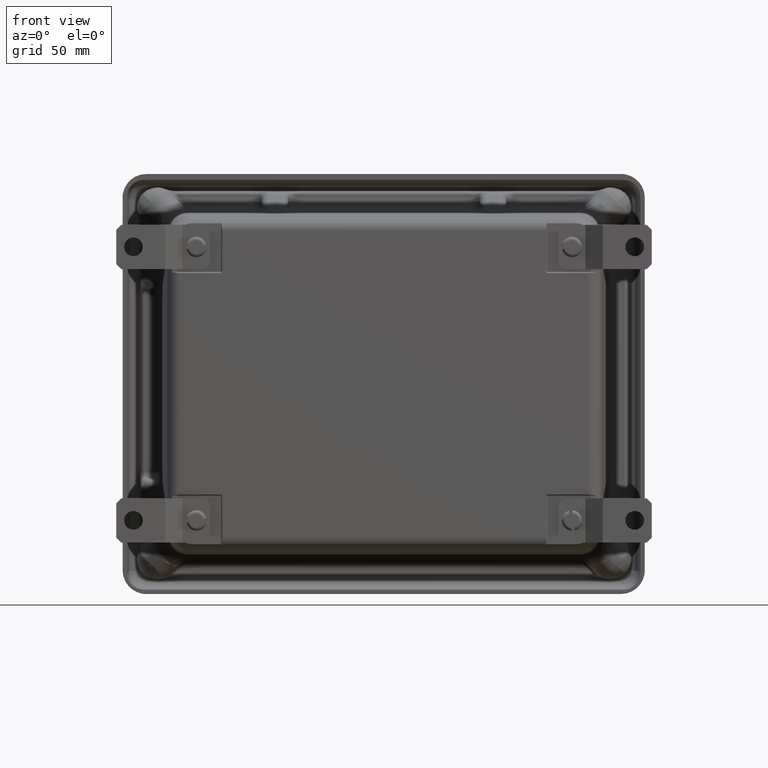
[diagram: clean part render]
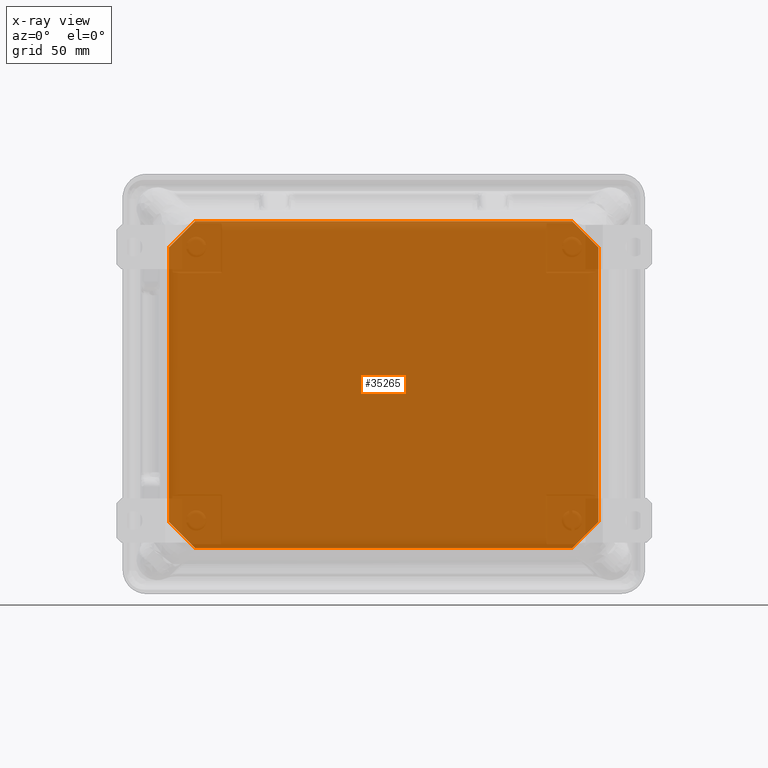
[diagram: x-ray — body ghosted, one internal face saturated and labeled with its STEP entity id]
A machine part, front view, then the same camera in x-ray: the body is ghosted and one INTERNAL B-rep face — a face not visible from any outside direction — is saturated and labeled: STEP entity #35265.
In plain terms, the highlighted planar face has unit normal (0, -1, 0).
Its self-contained STEP definition (entity closure, byte-faithful):
#3 = CARTESIAN_POINT ( 'NONE',  ( 8.252674110589252300, -0.1250000000000000300, -6.874272107867782600 ) ) ;
#450 = EDGE_CURVE ( 'NONE', #29347, #13280, #15317, .T. ) ;
#512 = VERTEX_POINT ( 'NONE', #21106 ) ;
#961 = DIRECTION ( 'NONE',  ( 0.0000000000000000000, 0.0000000000000000000, 1.000000000000000000 ) ) ;
#1025 = VECTOR ( 'NONE', #40102, 39.37007874015748100 ) ;
#3142 = CARTESIAN_POINT ( 'NONE',  ( 0.1250000000000026400, -0.1250000000000000300, -7.587000000000000600 ) ) ;
#3727 = CARTESIAN_POINT ( 'NONE',  ( 1.335325889410748500, -0.1250000000000000300, -0.8677278921322182400 ) ) ;
#4279 = ORIENTED_EDGE ( 'NONE', *, *, #26323, .T. ) ;
#4482 = FACE_OUTER_BOUND ( 'NONE', #14715, .T. ) ;
#5278 = VECTOR ( 'NONE', #24626, 39.37007874015748100 ) ;
#6891 = VERTEX_POINT ( 'NONE', #41174 ) ;
#7663 = CARTESIAN_POINT ( 'NONE',  ( 0.8527278921322171100, -0.1250000000000000300, -1.350325889410748600 ) ) ;
#8804 = VERTEX_POINT ( 'NONE', #29099 ) ;
#9936 = DIRECTION ( 'NONE',  ( 0.0000000000000000000, -0.0000000000000000000, -1.000000000000000000 ) ) ;
#10810 = VECTOR ( 'NONE', #14806, 39.37007874015748900 ) ;
#10882 = ORIENTED_EDGE ( 'NONE', *, *, #25058, .T. ) ;
#11013 = DIRECTION ( 'NONE',  ( 1.341772099049245400E-016, 0.0000000000000000000, -1.000000000000000000 ) ) ;
#11503 = LINE ( 'NONE', #34477, #20435 ) ;
#12450 = EDGE_CURVE ( 'NONE', #35531, #512, #21147, .T. ) ;
#12870 = LINE ( 'NONE', #32931, #23887 ) ;
#13103 = EDGE_CURVE ( 'NONE', #6891, #29347, #23180, .T. ) ;
#13198 = ORIENTED_EDGE ( 'NONE', *, *, #25114, .T. ) ;
#13280 = VERTEX_POINT ( 'NONE', #19290 ) ;
#14212 = DIRECTION ( 'NONE',  ( 0.7071067811865468000, 0.0000000000000000000, 0.7071067811865482400 ) ) ;
#14300 = DIRECTION ( 'NONE',  ( -0.7071067811865465700, 0.0000000000000000000, 0.7071067811865484600 ) ) ;
#14715 = EDGE_LOOP ( 'NONE', ( #10882, #21618, #41961, #4279, #28542, #13198, #24623, #31425 ) ) ;
#14806 = DIRECTION ( 'NONE',  ( 0.7071067811865469100, 0.0000000000000000000, -0.7071067811865479100 ) ) ;
#15317 = LINE ( 'NONE', #40899, #30012 ) ;
#17611 = AXIS2_PLACEMENT_3D ( 'NONE', #3142, #30048, #9936 ) ;
#19290 = CARTESIAN_POINT ( 'NONE',  ( 8.735272107867782400, -0.1250000000000000300, -6.391674110589250700 ) ) ;
#20435 = VECTOR ( 'NONE', #11013, 39.37007874015748100 ) ;
#21106 = CARTESIAN_POINT ( 'NONE',  ( 8.252674110589248700, -0.1250000000000000300, -0.8677278921322172400 ) ) ;
#21116 = CARTESIAN_POINT ( 'NONE',  ( 8.735272107867782400, -0.1250000000000000300, -1.324192468843659500 ) ) ;
#21147 = LINE ( 'NONE', #41140, #37931 ) ;
#21618 = ORIENTED_EDGE ( 'NONE', *, *, #12450, .T. ) ;
#23180 = LINE ( 'NONE', #37967, #5278 ) ;
#23277 = PLANE ( 'NONE',  #17611 ) ;
#23887 = VECTOR ( 'NONE', #39714, 39.37007874015748100 ) ;
#24487 = CARTESIAN_POINT ( 'NONE',  ( 1.353805008309339100, -0.1250000000000000300, -6.892751226766372400 ) ) ;
#24623 = ORIENTED_EDGE ( 'NONE', *, *, #13103, .T. ) ;
#24626 = DIRECTION ( 'NONE',  ( 1.000000000000000000, 0.0000000000000000000, 0.0000000000000000000 ) ) ;
#25058 = EDGE_CURVE ( 'NONE', #13280, #35531, #37592, .T. ) ;
#25114 = EDGE_CURVE ( 'NONE', #8804, #6891, #27613, .T. ) ;
#26323 = EDGE_CURVE ( 'NONE', #34066, #32270, #12870, .T. ) ;
#27613 = LINE ( 'NONE', #24487, #10810 ) ;
#28542 = ORIENTED_EDGE ( 'NONE', *, *, #39938, .T. ) ;
#29099 = CARTESIAN_POINT ( 'NONE',  ( 0.8527278921322178900, -0.1250000000000000300, -6.391674110589250700 ) ) ;
#29347 = VERTEX_POINT ( 'NONE', #3 ) ;
#30012 = VECTOR ( 'NONE', #14212, 39.37007874015748100 ) ;
#30048 = DIRECTION ( 'NONE',  ( 0.0000000000000000000, -1.000000000000000000, 0.0000000000000000000 ) ) ;
#30761 = VECTOR ( 'NONE', #961, 39.37007874015748100 ) ;
#31425 = ORIENTED_EDGE ( 'NONE', *, *, #450, .T. ) ;
#32137 = CARTESIAN_POINT ( 'NONE',  ( 8.735272107867782400, -0.1250000000000000300, -1.350325889410751900 ) ) ;
#32270 = VERTEX_POINT ( 'NONE', #7663 ) ;
#32931 = CARTESIAN_POINT ( 'NONE',  ( 0.8342487732336283400, -0.1250000000000000300, -1.368805008309337500 ) ) ;
#34066 = VERTEX_POINT ( 'NONE', #3727 ) ;
#34477 = CARTESIAN_POINT ( 'NONE',  ( 0.8527278921322177800, -0.1250000000000000300, -6.417807531156341800 ) ) ;
#35265 = ADVANCED_FACE ( 'NONE', ( #4482 ), #23277, .T. ) ;
#35531 = VERTEX_POINT ( 'NONE', #32137 ) ;
#36720 = CARTESIAN_POINT ( 'NONE',  ( 1.309192468843657100, -0.1250000000000000300, -0.8677278921322182400 ) ) ;
#36768 = LINE ( 'NONE', #36720, #1025 ) ;
#37592 = LINE ( 'NONE', #21116, #30761 ) ;
#37931 = VECTOR ( 'NONE', #14300, 39.37007874015748900 ) ;
#37967 = CARTESIAN_POINT ( 'NONE',  ( 8.278807531156344300, -0.1250000000000000300, -6.874272107867782600 ) ) ;
#38917 = EDGE_CURVE ( 'NONE', #512, #34066, #36768, .T. ) ;
#39714 = DIRECTION ( 'NONE',  ( -0.7071067811865482400, 0.0000000000000000000, -0.7071067811865468000 ) ) ;
#39938 = EDGE_CURVE ( 'NONE', #32270, #8804, #11503, .T. ) ;
#40102 = DIRECTION ( 'NONE',  ( -1.000000000000000000, 0.0000000000000000000, -1.568675276293002400E-016 ) ) ;
#40899 = CARTESIAN_POINT ( 'NONE',  ( 8.753751226766374000, -0.1250000000000000300, -6.373194991690659200 ) ) ;
#41140 = CARTESIAN_POINT ( 'NONE',  ( 8.234194991690660700, -0.1250000000000000300, -0.8492487732336275700 ) ) ;
#41174 = CARTESIAN_POINT ( 'NONE',  ( 1.335325889410748700, -0.1250000000000000300, -6.874272107867782600 ) ) ;
#41961 = ORIENTED_EDGE ( 'NONE', *, *, #38917, .T. ) ;